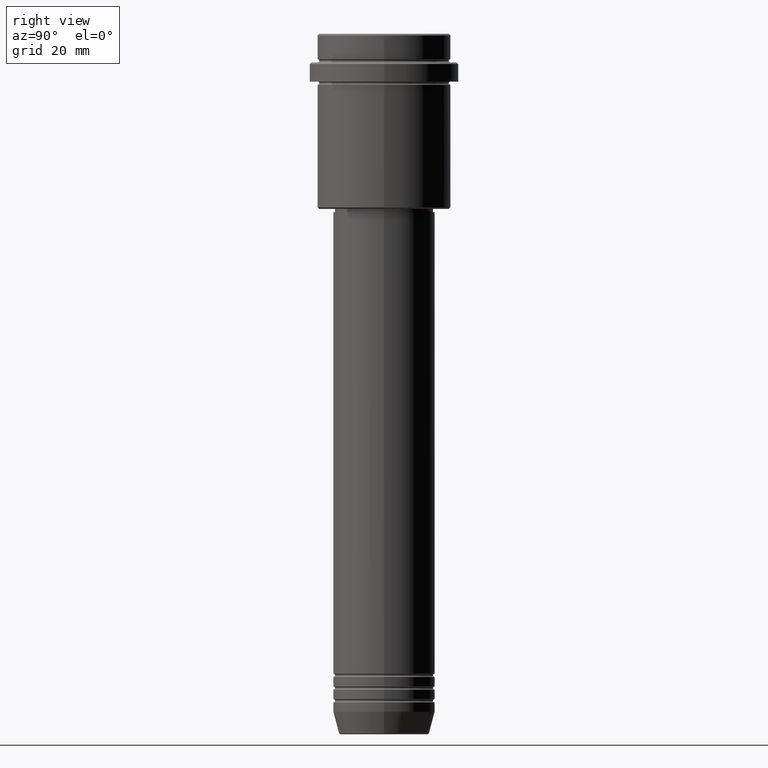
[diagram: clean part render]
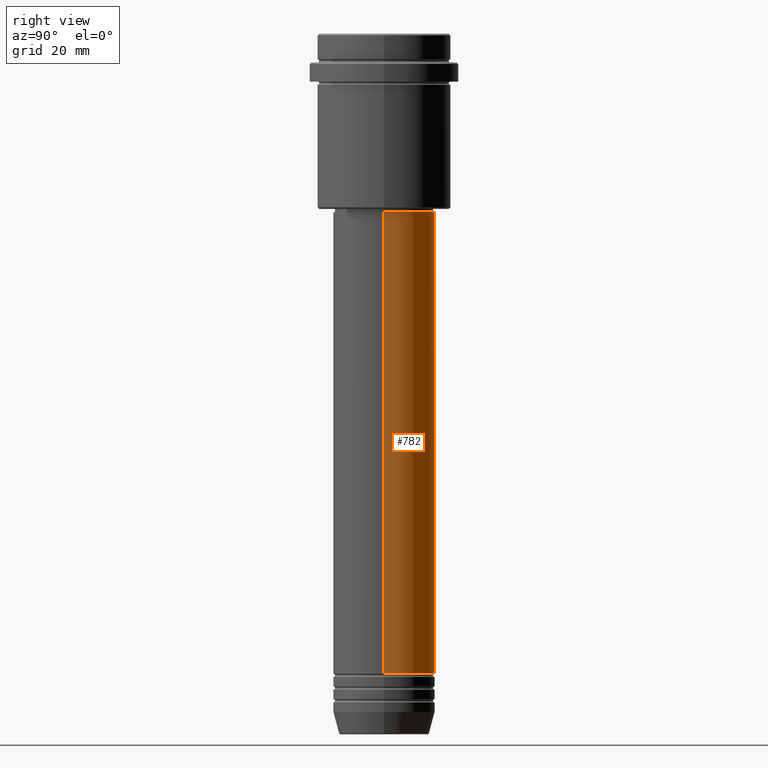
[diagram: same view with one face highlighted and labeled with its STEP entity id]
A machine part, right view. The second image highlights one B-rep face of the part: STEP entity #782.
In plain terms, the highlighted cylindrical surface (partial cylindrical patch) has radius 16 mm, axis along (-0, -0, 1).
Its self-contained STEP definition (entity closure, byte-faithful):
#3 = DIRECTION ( 'NONE',  ( -0.000000000000000000, -0.000000000000000000, 1.000000000000000000 ) ) ;
#31 = DIRECTION ( 'NONE',  ( -0.000000000000000000, -0.000000000000000000, 1.000000000000000000 ) ) ;
#43 = VECTOR ( 'NONE', #1191, 1000.000000000000000 ) ;
#69 = AXIS2_PLACEMENT_3D ( 'NONE', #99, #1285, #198 ) ;
#99 = CARTESIAN_POINT ( 'NONE',  ( 0.000000000000000000, 0.000000000000000000, -200.9999999999999147 ) ) ;
#144 = LINE ( 'NONE', #462, #296 ) ;
#198 = DIRECTION ( 'NONE',  ( 1.000000000000000000, 0.000000000000000000, 0.000000000000000000 ) ) ;
#223 = ORIENTED_EDGE ( 'NONE', *, *, #398, .F. ) ;
#250 = AXIS2_PLACEMENT_3D ( 'NONE', #308, #632, #500 ) ;
#296 = VECTOR ( 'NONE', #31, 1000.000000000000000 ) ;
#308 = CARTESIAN_POINT ( 'NONE',  ( 0.000000000000000000, 0.000000000000000000, 0.000000000000000000 ) ) ;
#338 = CARTESIAN_POINT ( 'NONE',  ( -16.00000000000000000, 1.959434878635765131E-15, 0.000000000000000000 ) ) ;
#398 = EDGE_CURVE ( 'NONE', #1047, #1144, #567, .T. ) ;
#424 = EDGE_CURVE ( 'NONE', #1331, #1144, #985, .T. ) ;
#431 = CARTESIAN_POINT ( 'NONE',  ( 0.000000000000000000, 0.000000000000000000, -56.00000000000002132 ) ) ;
#453 = ORIENTED_EDGE ( 'NONE', *, *, #424, .T. ) ;
#462 = CARTESIAN_POINT ( 'NONE',  ( 16.00000000000000000, 0.000000000000000000, 0.000000000000000000 ) ) ;
#486 = CARTESIAN_POINT ( 'NONE',  ( 16.00000000000000355, 0.000000000000000000, -56.00000000000002132 ) ) ;
#500 = DIRECTION ( 'NONE',  ( 1.000000000000000000, 0.000000000000000000, 0.000000000000000000 ) ) ;
#532 = CARTESIAN_POINT ( 'NONE',  ( 16.00000000000000000, 0.000000000000000000, -200.9999999999999147 ) ) ;
#567 = CIRCLE ( 'NONE', #974, 16.00000000000000355 ) ;
#628 = EDGE_CURVE ( 'NONE', #798, #1047, #144, .T. ) ;
#630 = CARTESIAN_POINT ( 'NONE',  ( -16.00000000000000355, 1.959434878635765526E-15, -56.00000000000002132 ) ) ;
#632 = DIRECTION ( 'NONE',  ( -0.000000000000000000, -0.000000000000000000, 1.000000000000000000 ) ) ;
#683 = CIRCLE ( 'NONE', #69, 16.00000000000000000 ) ;
#746 = CYLINDRICAL_SURFACE ( 'NONE', #250, 16.00000000000000000 ) ;
#754 = EDGE_CURVE ( 'NONE', #798, #1331, #683, .T. ) ;
#782 = ADVANCED_FACE ( 'NONE', ( #967 ), #746, .T. ) ;
#798 = VERTEX_POINT ( 'NONE', #532 ) ;
#860 = DIRECTION ( 'NONE',  ( 1.000000000000000000, 0.000000000000000000, 0.000000000000000000 ) ) ;
#885 = ORIENTED_EDGE ( 'NONE', *, *, #628, .F. ) ;
#906 = ORIENTED_EDGE ( 'NONE', *, *, #754, .T. ) ;
#957 = EDGE_LOOP ( 'NONE', ( #906, #453, #223, #885 ) ) ;
#967 = FACE_OUTER_BOUND ( 'NONE', #957, .T. ) ;
#974 = AXIS2_PLACEMENT_3D ( 'NONE', #431, #3, #860 ) ;
#985 = LINE ( 'NONE', #338, #43 ) ;
#1034 = CARTESIAN_POINT ( 'NONE',  ( -16.00000000000000000, 1.959434878635765131E-15, -200.9999999999999147 ) ) ;
#1047 = VERTEX_POINT ( 'NONE', #486 ) ;
#1144 = VERTEX_POINT ( 'NONE', #630 ) ;
#1191 = DIRECTION ( 'NONE',  ( -0.000000000000000000, -0.000000000000000000, 1.000000000000000000 ) ) ;
#1285 = DIRECTION ( 'NONE',  ( -0.000000000000000000, -0.000000000000000000, 1.000000000000000000 ) ) ;
#1331 = VERTEX_POINT ( 'NONE', #1034 ) ;